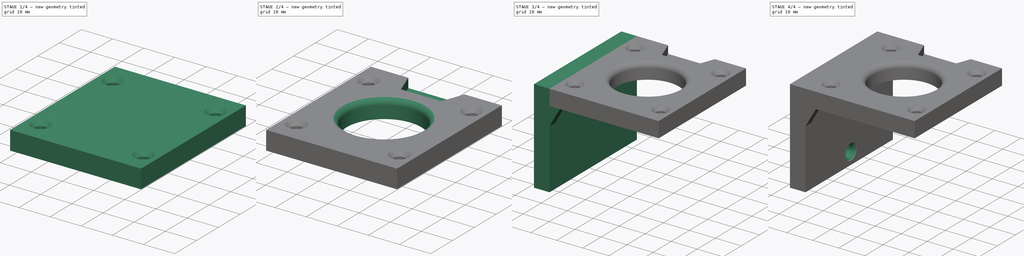
[diagram: build sequence overview — one tinted view per stage of 4, left to right]
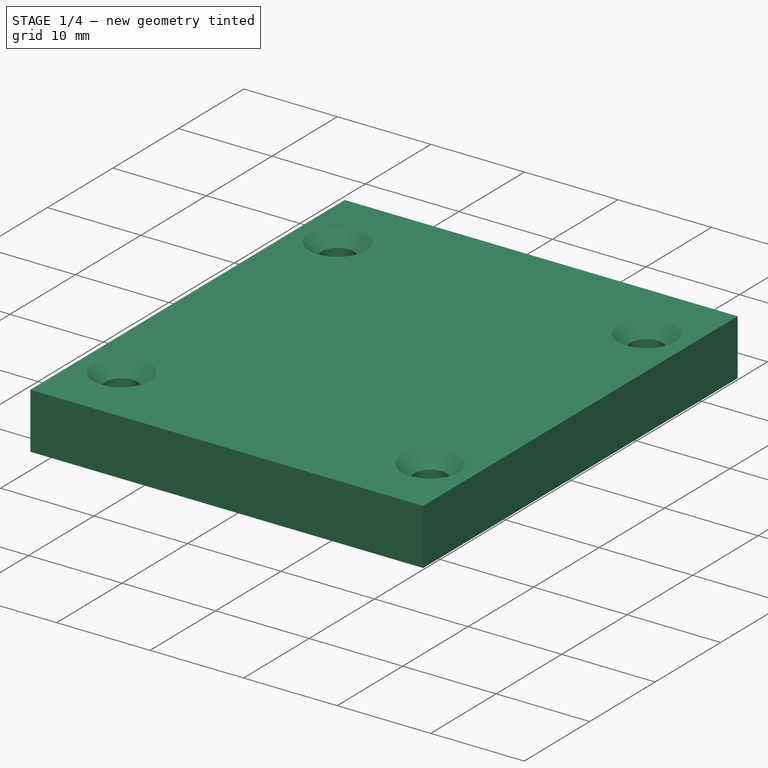
[diagram: stage 1 of 4 — iso view after this stage's code; geometry added in this stage tinted green]
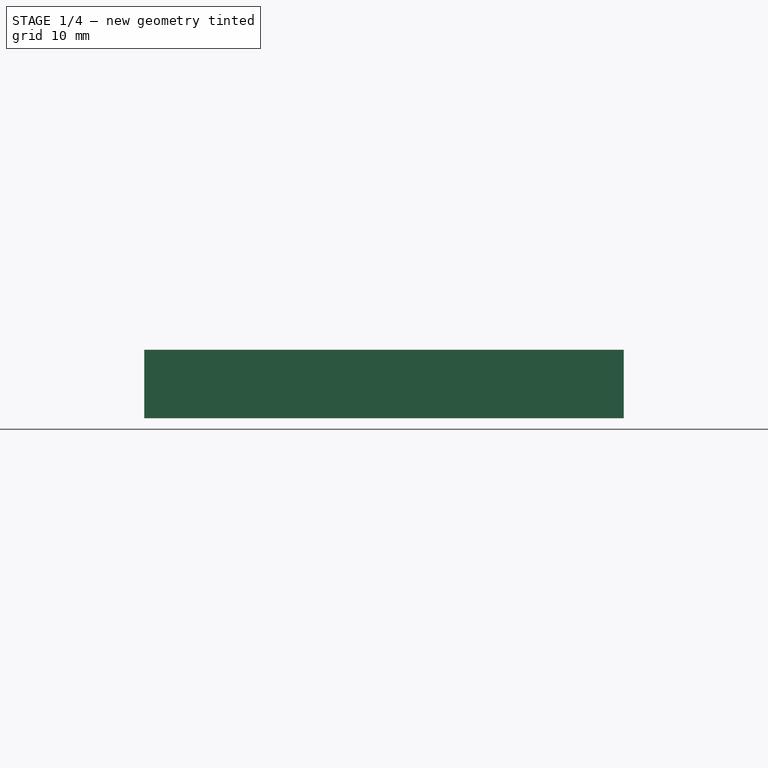
[diagram: stage 1 of 4 — front view after this stage's code; geometry added in this stage tinted green]
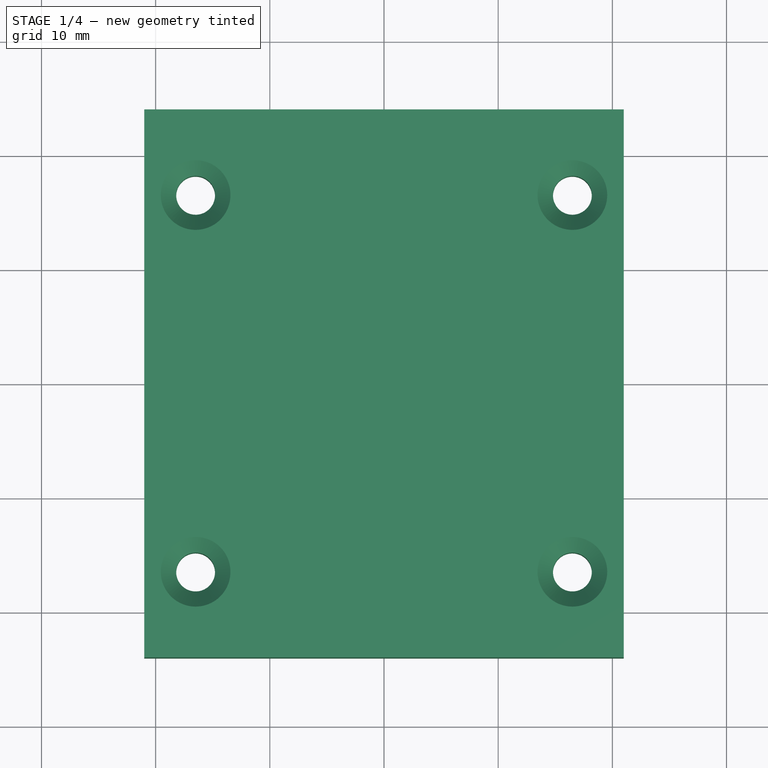
[diagram: stage 1 of 4 — top view after this stage's code; geometry added in this stage tinted green]
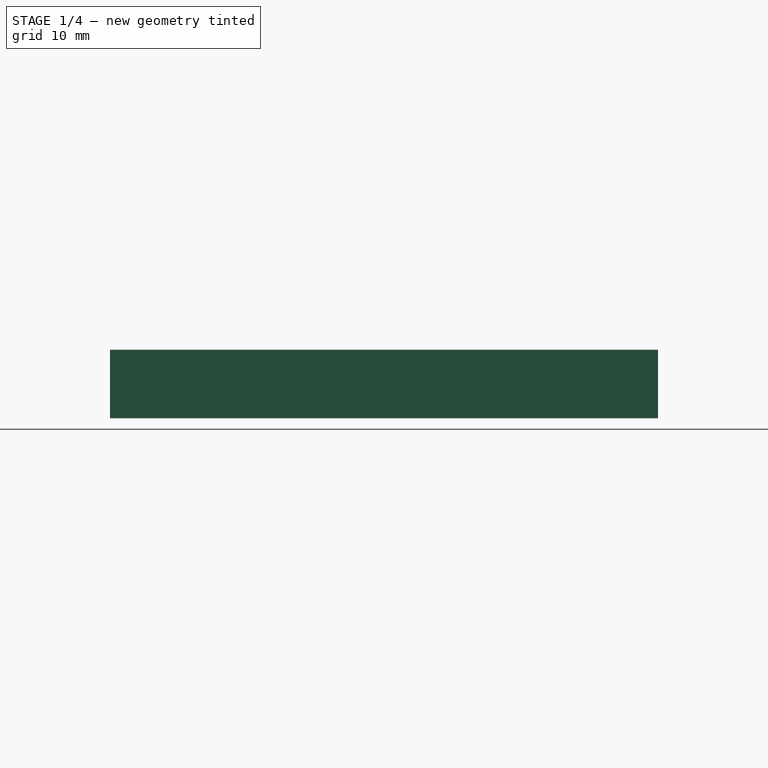
[diagram: stage 1 of 4 — right view after this stage's code; geometry added in this stage tinted green]
FCSTD DOCUMENT  (FreeCAD 0.22R38334 (Git))
Label: MH003
License: All rights reserved
LicenseURL: http://en.wikipedia.org/wiki/All_rights_reserved
objects: Sketcher::SketchObject×8, PartDesign::SubShapeBinder×5, PartDesign::Body×4, PartDesign::Pad×3, PartDesign::Pocket×3, PartDesign::Hole×2, PartDesign::Mirrored×1, PartDesign::Fillet×1, App::Part×1
note: 54 computed .brp shape members not serialized (recipe doc carries the construction recipe); baked Part::Feature solids carry a one-line shape summary decoded from their .brp

FEATURE [PartDesign::SubShapeBinder] Binder012
  BindCopyOnChange = 0
  BindMode = 0
  ClaimChildren = false
  Context = -> Part002 [Body009.Binder012.]
  Fuse = false
  MakeFace = true
  OffsetFill = false
  OffsetIntersection = false
  OffsetJoinType = 0
  OffsetOpenResult = false
  PartialLoad = false
  Relative = true
  Support = -> [Body008[Sketch018.]]
  _Version = 2
FEATURE [PartDesign::SubShapeBinder] Binder013
  BindCopyOnChange = 0
  BindMode = 0
  ClaimChildren = false
  Context = -> Part002 [Body010.Binder013.]
  Fuse = false
  MakeFace = true
  OffsetFill = false
  OffsetIntersection = false
  OffsetJoinType = 0
  OffsetOpenResult = false
  PartialLoad = false
  Relative = true
  Support = -> [Body008[Sketch018.]]
  _Version = 2
FEATURE [PartDesign::SubShapeBinder] Binder014
  BindCopyOnChange = 0
  BindMode = 2
  ClaimChildren = false
  Fuse = false
  MakeFace = true
  OffsetFill = false
  OffsetIntersection = false
  OffsetJoinType = 0
  OffsetOpenResult = false
  PartialLoad = false
  Placement = pos=(-135.5,-191,0) rot=(-0.57735,0.57735,-0.57735;2.0944rad)
  Relative = true
  _Version = 2
FEATURE [PartDesign::SubShapeBinder] Binder022
  BindCopyOnChange = 0
  BindMode = 2
  ClaimChildren = false
  Context = -> Part002 [Body011.Binder022.]
  Fuse = false
  MakeFace = true
  OffsetFill = false
  OffsetIntersection = false
  OffsetJoinType = 0
  OffsetOpenResult = false
  PartialLoad = false
  Placement = pos=(-21.5,191,0) rot=(-0.57735,-0.57735,0.57735;2.0944rad)
  Relative = true
  _Version = 2
FEATURE [PartDesign::SubShapeBinder] Binder024
  BindCopyOnChange = 0
  BindMode = 2
  ClaimChildren = false
  Context = -> Part002 [Body011.Binder024.]
  Fuse = false
  MakeFace = true
  OffsetFill = false
  OffsetIntersection = false
  OffsetJoinType = 0
  OffsetOpenResult = false
  PartialLoad = false
  Placement = pos=(-21.5,191,0) rot=(-0.57735,-0.57735,0.57735;2.0944rad)
  Relative = true
  _Version = 2
FEATURE [PartDesign::Body] Body011
  AllowCompound = false
  Group = -> [Binder014,Binder022]
  Origin = -> Origin014
FEATURE [PartDesign::Pad] Pad006
  Direction = (0,0,1)
  Length = 6
  Length2 = 10
  Profile = -> Binder012
  Suppressed = false
  Type = 0
FEATURE [Sketcher::SketchObject] Sketch018
  AttachmentSupport = -> [XY_Plane011]
  FullyConstrained = true
  MakeInternals = false
  MapMode = 5
  sketch-geometry (5):
    g0: LineSegment StartX=-21 StartY=-24 StartZ=0 EndX=21 EndY=-24 EndZ=0
    g1: LineSegment StartX=21 StartY=-24 StartZ=0 EndX=21 EndY=24 EndZ=0
    g2: LineSegment StartX=21 StartY=24 StartZ=0 EndX=-21 EndY=24 EndZ=0
    g3: LineSegment StartX=-21 StartY=24 StartZ=0 EndX=-21 EndY=-24 EndZ=0
    g4: GeomPoint X=0 Y=0 Z=0
  constraints (12):
    c: Coincident(g0,g1)
    c: Coincident(g1,g2)
    c: Coincident(g2,g3)
    c: Coincident(g3,g0)
    c: Horizontal(g0)
    c: Horizontal(g2)
    c: Vertical(g1)
    c: Vertical(g3)
    c: Symmetric(g2,g0,g4)
    c: Coincident(g4,g-1)
    c: DistanceY(g3,g3) = 48
    c: DistanceX(g2,g2) = 42
FEATURE [PartDesign::Body] Body008  label="Master002"
  AllowCompound = false
  Group = -> [Sketch018]
  Origin = -> Origin011
FEATURE [Sketcher::SketchObject] Sketch019
  AttachmentSupport = -> [Pad006]
  FullyConstrained = true
  MakeInternals = false
  MapMode = 5
  Placement = pos=(0,0,6) rot=(0,0,1;0rad)
  sketch-geometry (9):
    g0: LineSegment StartX=-16.5 StartY=-16.5 StartZ=0 EndX=16.5 EndY=-16.5 EndZ=0
    g1: LineSegment StartX=16.5 StartY=-16.5 StartZ=0 EndX=16.5 EndY=16.5 EndZ=0
    g2: LineSegment StartX=16.5 StartY=16.5 StartZ=0 EndX=-16.5 EndY=16.5 EndZ=0
    g3: LineSegment StartX=-16.5 StartY=16.5 StartZ=0 EndX=-16.5 EndY=-16.5 EndZ=0
    g4: GeomPoint X=0 Y=0 Z=0
    g5: Circle CenterX=-16.5 CenterY=16.5 CenterZ=0 NormalX=0 NormalY=0 NormalZ=1 AngleXU=0 Radius=1.5
    g6: Circle CenterX=-16.5 CenterY=-16.5 CenterZ=0 NormalX=0 NormalY=0 NormalZ=1 AngleXU=0 Radius=1.5
    g7: Circle CenterX=16.5 CenterY=-16.5 CenterZ=0 NormalX=0 NormalY=0 NormalZ=1 AngleXU=0 Radius=1.5
    g8: Circle CenterX=16.5 CenterY=16.5 CenterZ=0 NormalX=0 NormalY=0 NormalZ=1 AngleXU=0 Radius=1.5
  constraints (20):
    c: Coincident(g0,g1)
    c: Coincident(g1,g2)
    c: Coincident(g2,g3)
    c: Coincident(g3,g0)
    c: Horizontal(g0)
    c: Horizontal(g2)
    c: Vertical(g1)
    c: Vertical(g3)
    c: Symmetric(g2,g0,g4)
    c: Coincident(g4,g-1)
    c: Equal(g2,g3)
    c: DistanceX(g2,g2) = 33
    c: Coincident(g5,g2)
    c: Coincident(g6,g0)
    c: Coincident(g7,g0)
    c: Coincident(g8,g1)
    c: Equal(g5,g8)
    c: Equal(g8,g7)
    c: Equal(g7,g6)
    c: Diameter(g5) = 3
FEATURE [PartDesign::Hole] Hole005
  BaseFeature = -> Pad006
  CustomThreadClearance = 0
  Depth = 120.592
  DepthType = 1
  Diameter = 3.4
  DrillForDepth = false
  DrillPoint = 1
  DrillPointAngle = 118
  HoleCutCountersinkAngle = 90
  HoleCutCustomValues = false
  HoleCutDepth = 0
  HoleCutDiameter = 6.1
  HoleCutType = 2
  ModelThread = false
  Profile = -> Sketch019
  Suppressed = false
  Tapered = false
  TaperedAngle = 90
  ThreadClass = 0
  ThreadDepth = 120.592
  ThreadDepthType = 0
  ThreadDirection = 0
  ThreadFit = 0
  ThreadSize = 9
  ThreadType = 1
  Threaded = false
  UseCustomThreadClearance = false
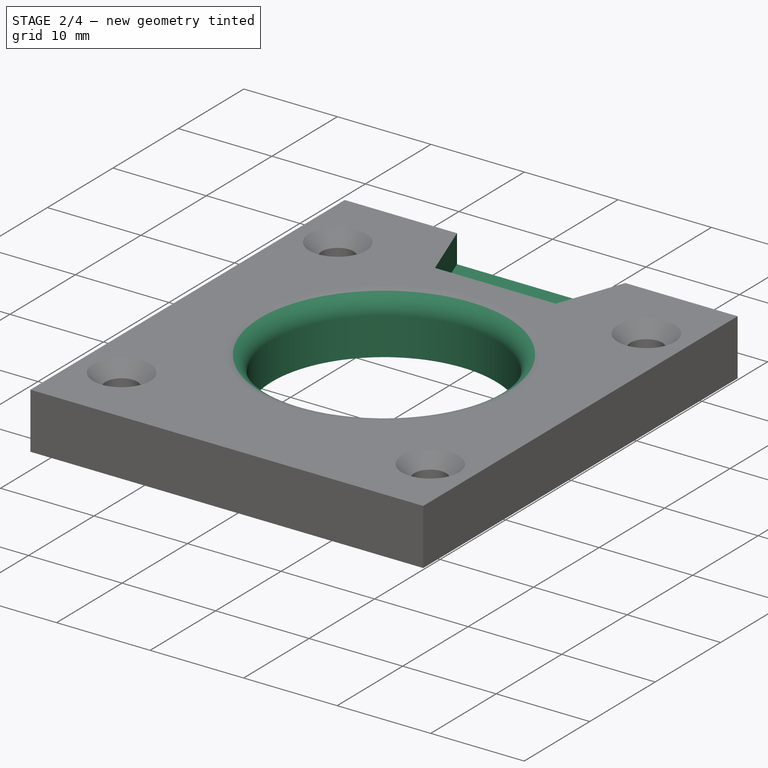
[diagram: stage 2 of 4 — iso view after this stage's code; geometry added in this stage tinted green]
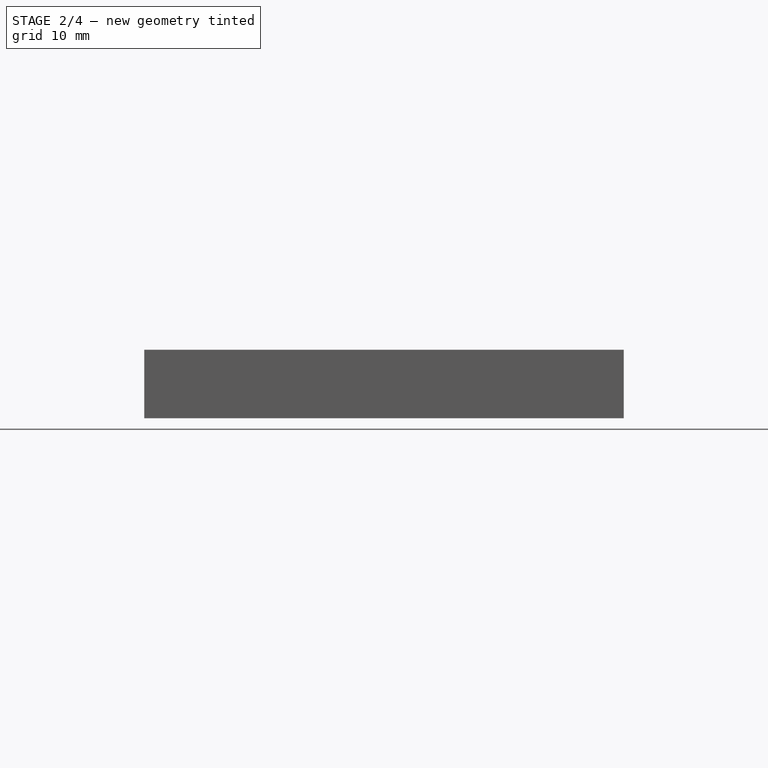
[diagram: stage 2 of 4 — front view after this stage's code; geometry added in this stage tinted green]
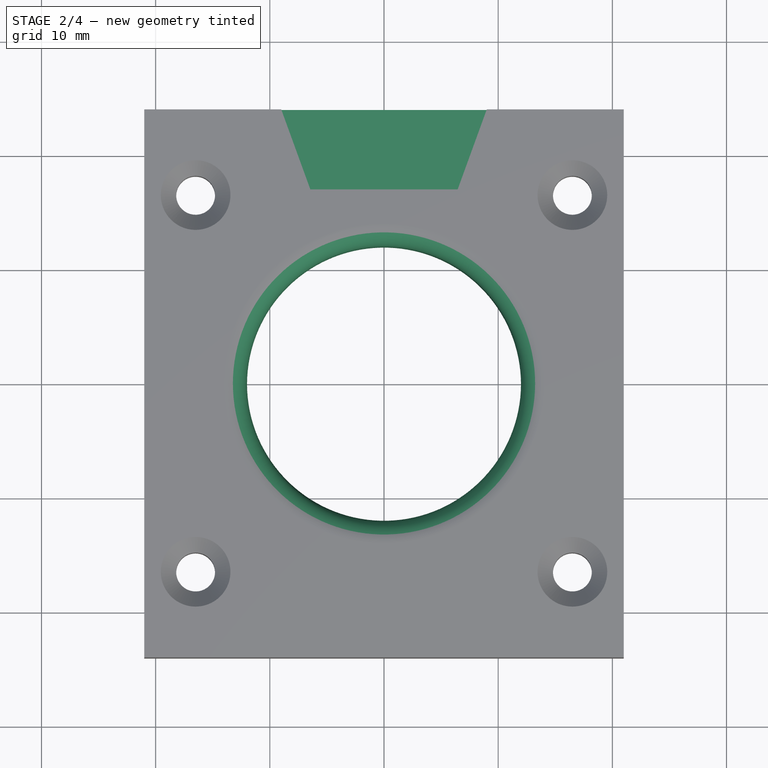
[diagram: stage 2 of 4 — top view after this stage's code; geometry added in this stage tinted green]
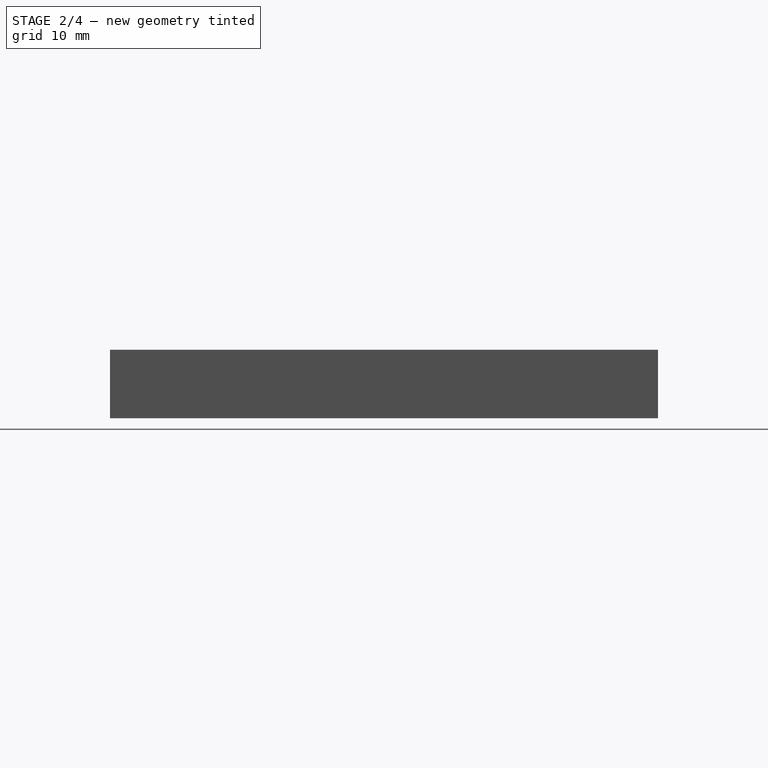
[diagram: stage 2 of 4 — right view after this stage's code; geometry added in this stage tinted green]
FEATURE [Sketcher::SketchObject] Sketch022
  AttachmentSupport = -> [Hole005]
  ExternalGeometry = -> [Sketch019]
  FullyConstrained = true
  MakeInternals = false
  MapMode = 5
  Placement = pos=(0,0,6) rot=(0,0,1;0rad)
  sketch-geometry (1):
    g0: Circle CenterX=-2e-16 CenterY=2e-16 CenterZ=0 NormalX=0 NormalY=0 NormalZ=1 AngleXU=0 Radius=12
  constraints (2):
    c: Symmetric(g-3,g-4,g0)
    c: Diameter(g0) = 24
FEATURE [PartDesign::Pocket] Pocket005
  BaseFeature = -> Hole005
  Direction = (0,0,-1)
  Length = 5
  Length2 = 5
  Profile = -> Sketch022
  ReferenceAxis = -> Sketch022 [N_Axis]
  Suppressed = false
  Type = 1
FEATURE [PartDesign::Fillet] Fillet002
  Base = -> Pocket005 [Edge21]
  BaseFeature = -> Pocket005
  Radius = 2
  SupportTransform = false
  Suppressed = false
  UseAllEdges = false
FEATURE [Sketcher::SketchObject] Sketch023
  AttachmentSupport = -> [Fillet002]
  ExternalGeometry = -> [Fillet002]
  FullyConstrained = true
  MakeInternals = false
  MapMode = 5
  Placement = pos=(0,0,6) rot=(0,0,1;0rad)
  sketch-geometry (4):
    g0: LineSegment StartX=-9 StartY=24 StartZ=0 EndX=9 EndY=24 EndZ=0
    g1: LineSegment StartX=9 StartY=24 StartZ=0 EndX=6.45221 EndY=17 EndZ=0
    g2: LineSegment StartX=6.45221 StartY=17 StartZ=0 EndX=-6.45221 EndY=17 EndZ=0
    g3: LineSegment StartX=-6.45221 StartY=17 StartZ=0 EndX=-9 EndY=24 EndZ=0
  constraints (10):
    c: PointOnObject(g0,g-3)
    c: Coincident(g0,g1)
    c: Coincident(g1,g2)
    c: Coincident(g2,g3)
    c: Coincident(g3,g0)
    c: Symmetric(g1,g2,g-2)
    c: Symmetric(g0,g0,g-2)
    c: Distance(g2,g0) = 7
    c: Angle(g2,g3) = 1.91986
    c: DistanceX(g0,g0) = 18
FEATURE [PartDesign::Pocket] Pocket010
  BaseFeature = -> Fillet002
  Direction = (0,0,-1)
  Length = 3
  Length2 = 5
  Profile = -> Sketch023
  ReferenceAxis = -> Sketch023 [N_Axis]
  Suppressed = false
  Type = 0
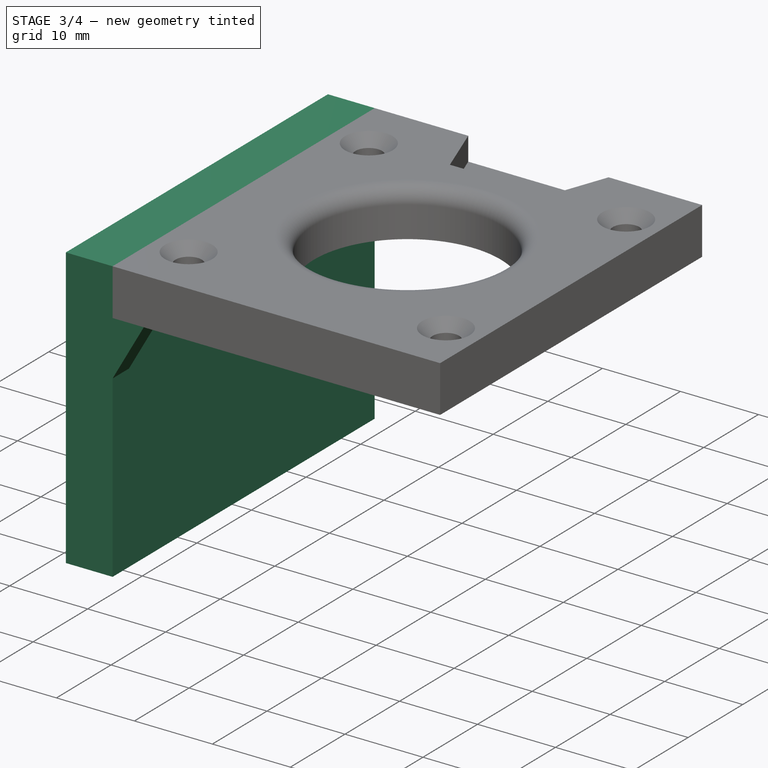
[diagram: stage 3 of 4 — iso view after this stage's code; geometry added in this stage tinted green]
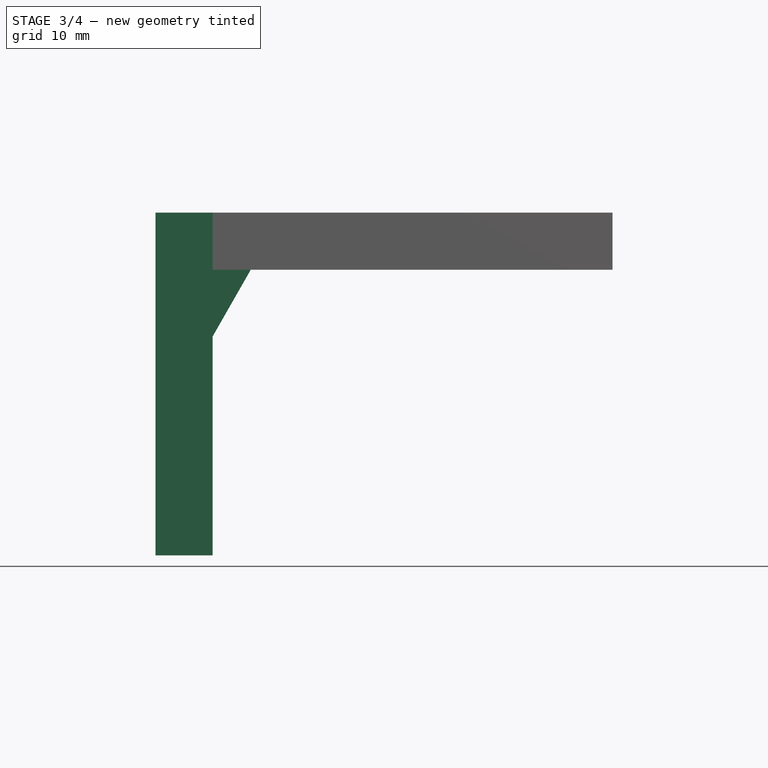
[diagram: stage 3 of 4 — front view after this stage's code; geometry added in this stage tinted green]
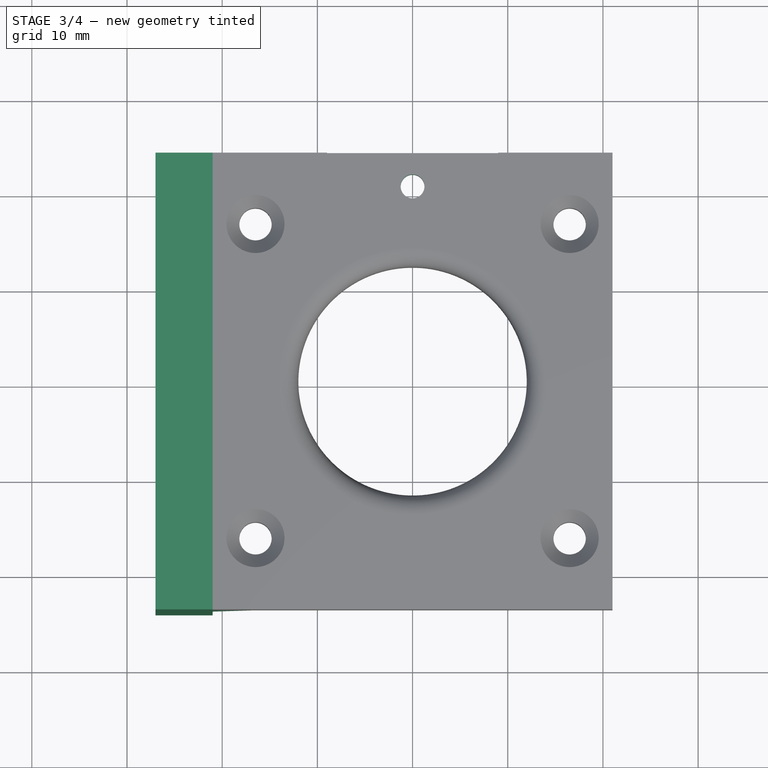
[diagram: stage 3 of 4 — top view after this stage's code; geometry added in this stage tinted green]
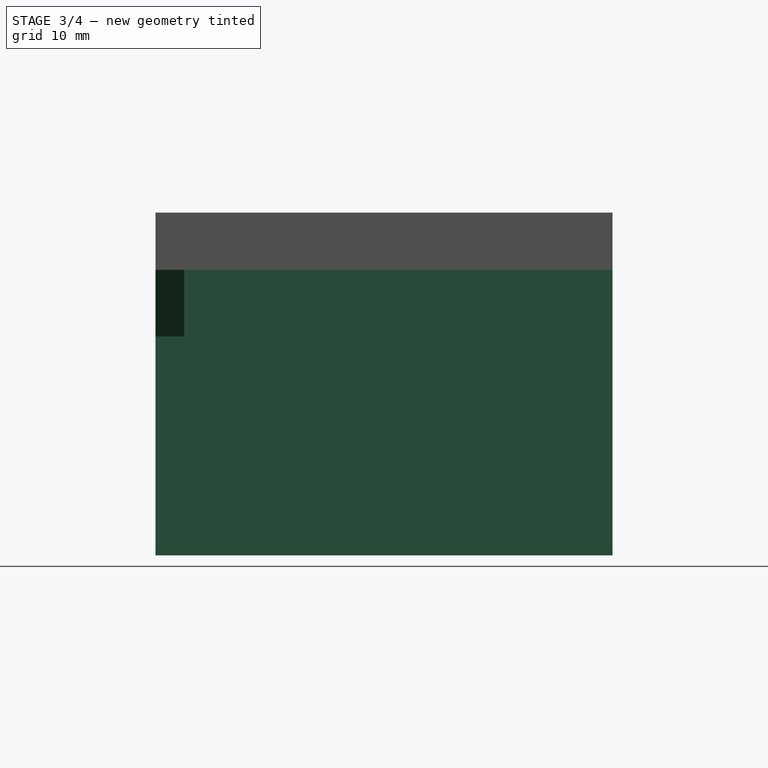
[diagram: stage 3 of 4 — right view after this stage's code; geometry added in this stage tinted green]
FEATURE [Sketcher::SketchObject] Sketch020
  AttachmentSupport = -> [Binder013]
  ExternalGeometry = -> [Binder013]
  FullyConstrained = true
  MakeInternals = false
  MapMode = 5
  sketch-geometry (4):
    g0: LineSegment StartX=-21 StartY=24 StartZ=0 EndX=-27 EndY=24 EndZ=0
    g1: LineSegment StartX=-27 StartY=24 StartZ=0 EndX=-27 EndY=-24 EndZ=0
    g2: LineSegment StartX=-27 StartY=-24 StartZ=0 EndX=-21 EndY=-24 EndZ=0
    g3: LineSegment StartX=-21 StartY=-24 StartZ=0 EndX=-21 EndY=24 EndZ=0
  constraints (10):
    c: Coincident(g0,g1)
    c: Coincident(g1,g2)
    c: Coincident(g2,g3)
    c: Coincident(g3,g0)
    c: Horizontal(g0)
    c: Horizontal(g2)
    c: Vertical(g1)
    c: Coincident(g0,g-3)
    c: Coincident(g2,g-3)
    c: DistanceX(g2,g2) = 6
FEATURE [PartDesign::Pad] Pad007
  Direction = (0,0,1)
  Length = 6
  Length2 = 30
  Profile = -> Sketch020
  ReferenceAxis = -> Sketch020 [N_Axis]
  Suppressed = false
  Type = 4
FEATURE [Sketcher::SketchObject] Sketch021
  AttachmentSupport = -> [Pad007]
  ExternalGeometry = -> [Binder013,Pad007]
  FullyConstrained = true
  MakeInternals = false
  MapMode = 5
  Placement = pos=(0,-24,0) rot=(1,0,0;1.5708rad)
  sketch-geometry (3):
    g0: LineSegment StartX=-21 StartY=0 StartZ=0 EndX=-21 EndY=-7 EndZ=0
    g1: LineSegment StartX=-21 StartY=-7 StartZ=0 EndX=-17 EndY=0 EndZ=0
    g2: LineSegment StartX=-17 StartY=0 StartZ=0 EndX=-21 EndY=0 EndZ=0
  constraints (9):
    c: Coincident(g0,g1)
    c: Coincident(g1,g2)
    c: DistanceX(g2,g2) = 4
    c: DistanceY(g0,g0) = 7
    c: PointOnObject(g0,g-4)
    c: Coincident(g2,g0)
    c: PointOnObject(g0,g-4)
    c: Horizontal(g2)
    c: PointOnObject(g1,g-1)
FEATURE [PartDesign::Pad] Pad008
  BaseFeature = -> Pad007
  Direction = (0,-1,2e-16)
  Length = 3
  Length2 = 10
  Profile = -> Sketch021
  ReferenceAxis = -> Sketch021 [N_Axis]
  Reversed = true
  Suppressed = false
  Type = 0
FEATURE [PartDesign::Body] Body010
  AllowCompound = false
  Group = -> [Binder013,Sketch020,Pad007,Sketch021,Pad008,Mirrored002,Binder024,Sketch036,Hole010]
  Origin = -> Origin013
  Tip = -> Hole010
FEATURE [Sketcher::SketchObject] Sketch037
  AttachmentSupport = -> [Pocket010]
  ExternalGeometry = -> [Pocket010]
  FullyConstrained = true
  MakeInternals = false
  MapMode = 5
  Placement = pos=(0,0,3) rot=(0,0,1;0rad)
  sketch-geometry (2):
    g0: LineSegment StartX=0 StartY=24 StartZ=0 EndX=0 EndY=17 EndZ=0
    g1: Circle CenterX=0 CenterY=20.5 CenterZ=0 NormalX=0 NormalY=0 NormalZ=1 AngleXU=0 Radius=1.25
  constraints (4):
    c: Symmetric(g-3,g-3,g0)
    c: Symmetric(g-4,g-4,g0)
    c: Symmetric(g0,g0,g1)
    c: Diameter(g1) = 2.5
FEATURE [PartDesign::Pocket] Pocket011
  BaseFeature = -> Pocket010
  Direction = (0,0,-1)
  Length = 5
  Length2 = 5
  Profile = -> Sketch037
  ReferenceAxis = -> Sketch037 [N_Axis]
  Suppressed = false
  Type = 1
FEATURE [PartDesign::Body] Body009
  AllowCompound = false
  Group = -> [Binder012,Pad006,Sketch019,Hole005,Sketch022,Pocket005,Fillet002,Sketch023,Pocket010,Sketch037,Pocket011]
  Origin = -> Origin012
  Tip = -> Pocket011
FEATURE [App::Part] Part002  label="MH003"
  Group = -> [Body008,Body009,Body010,Body011]
  Origin = -> Origin010
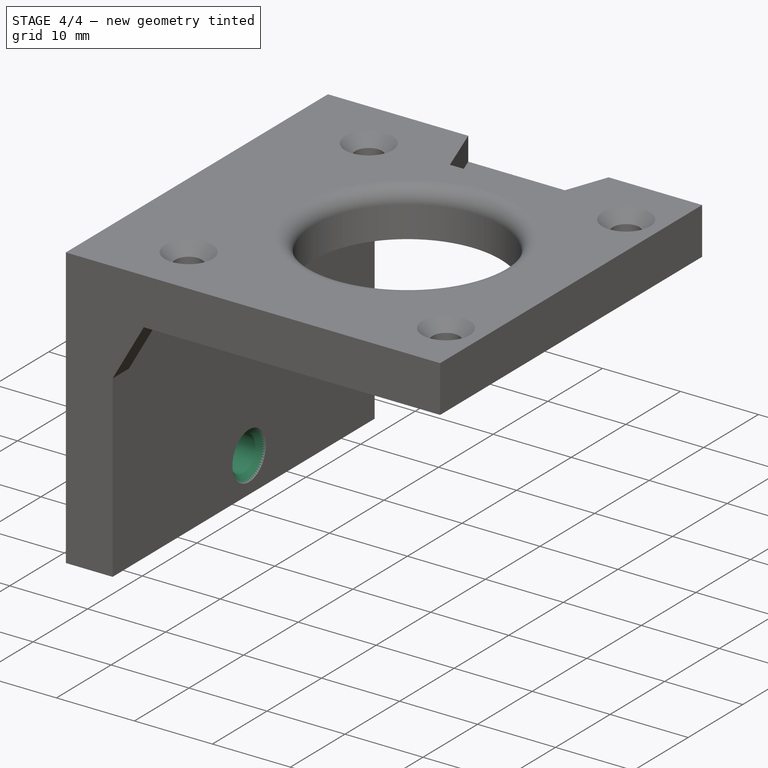
[diagram: stage 4 of 4 — iso view after this stage's code; geometry added in this stage tinted green]
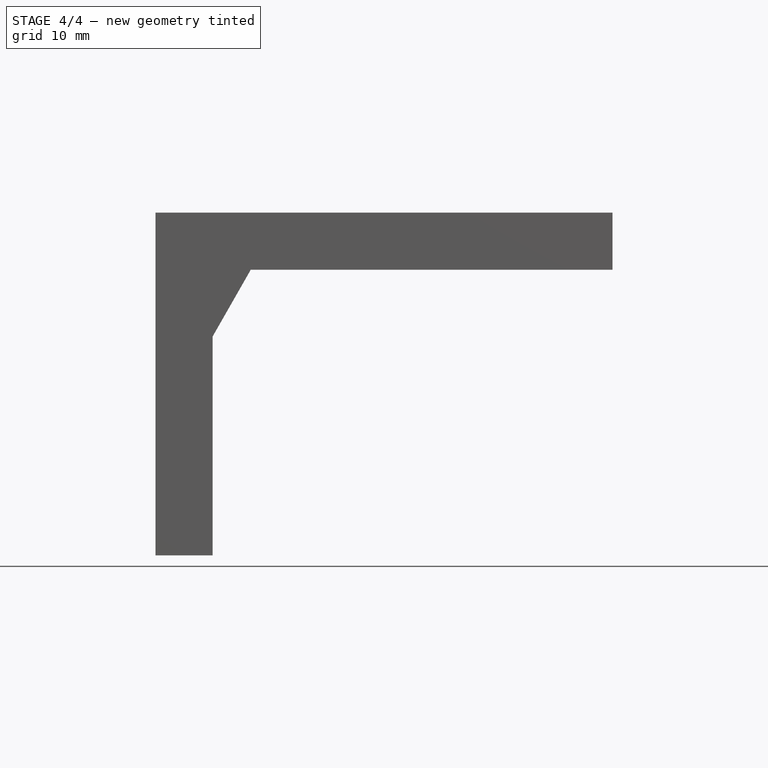
[diagram: stage 4 of 4 — front view after this stage's code; geometry added in this stage tinted green]
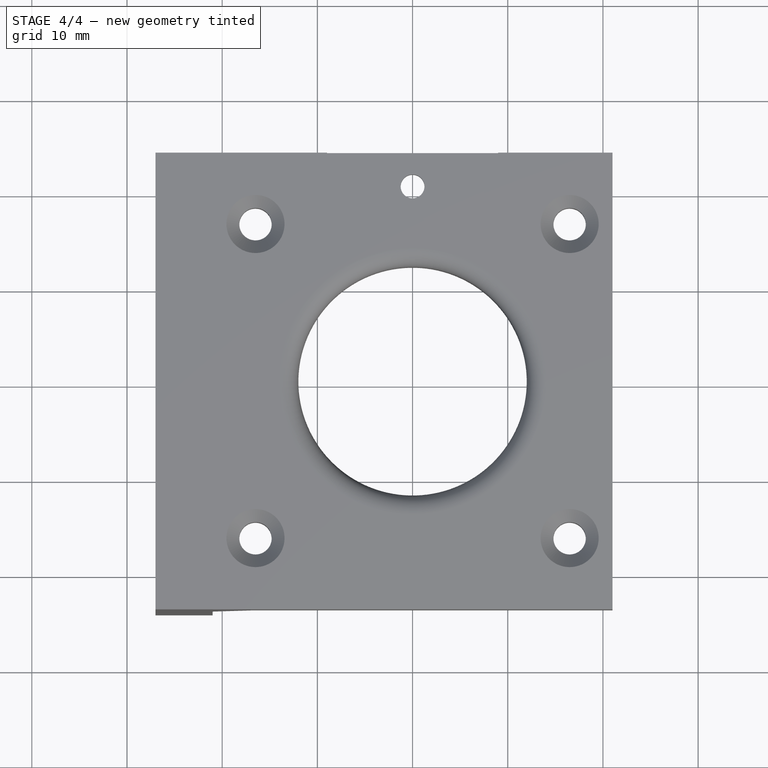
[diagram: stage 4 of 4 — top view after this stage's code; geometry added in this stage tinted green]
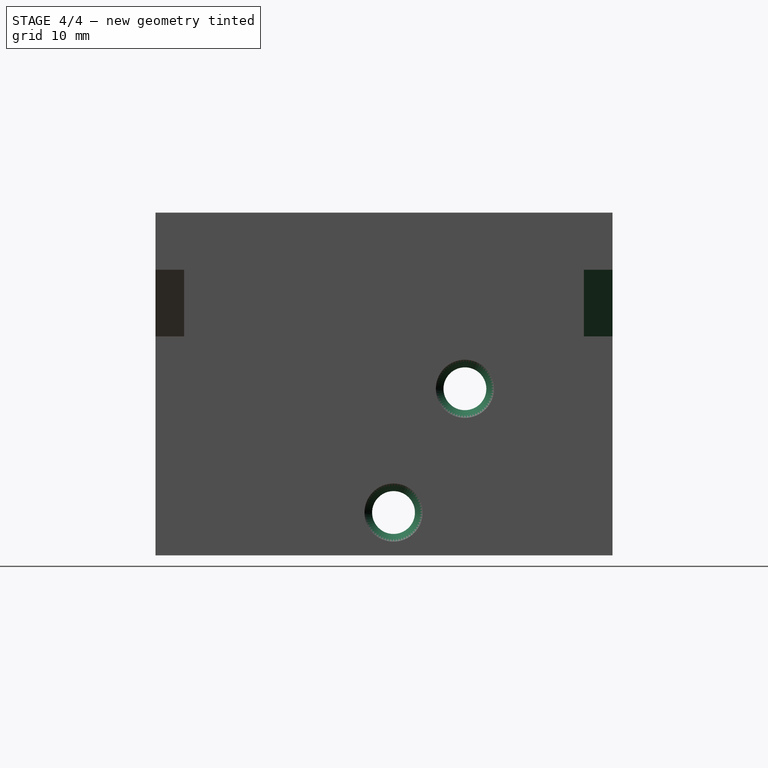
[diagram: stage 4 of 4 — right view after this stage's code; geometry added in this stage tinted green]
FEATURE [PartDesign::Mirrored] Mirrored002
  BaseFeature = -> Pad008
  MirrorPlane = -> XZ_Plane013
  Originals = -> [Pad008]
  Suppressed = false
  TransformMode = 0
FEATURE [Sketcher::SketchObject] Sketch036
  AttachmentSupport = -> [Binder024]
  ExternalGeometry = -> [Binder024]
  FullyConstrained = true
  MakeInternals = false
  MapMode = 5
  Placement = pos=(-21,191,0) rot=(0.57735,0.57735,0.57735;2.0944rad)
  sketch-geometry (2):
    g0: Circle CenterX=-190 CenterY=-25.5018 CenterZ=0 NormalX=0 NormalY=0 NormalZ=1 AngleXU=0 Radius=1.65
    g1: Circle CenterX=-182.5 CenterY=-12.5 CenterZ=0 NormalX=0 NormalY=0 NormalZ=1 AngleXU=0 Radius=1.65
  constraints (4):
    c: Coincident(g0,g-4)
    c: PointOnObject(g-4,g0)
    c: Coincident(g1,g-5)
    c: PointOnObject(g-5,g1)
FEATURE [PartDesign::Hole] Hole010
  BaseFeature = -> Mirrored002
  CustomThreadClearance = 0
  Depth = 25
  DepthType = 0
  Diameter = 4.5
  DrillForDepth = false
  DrillPoint = 1
  DrillPointAngle = 118
  HoleCutCountersinkAngle = 90
  HoleCutCustomValues = false
  HoleCutDepth = 0
  HoleCutDiameter = 6.1
  HoleCutType = 2
  ModelThread = false
  Profile = -> Sketch036
  Suppressed = false
  Tapered = false
  TaperedAngle = 90
  ThreadClass = 0
  ThreadDepth = 25
  ThreadDepthType = 0
  ThreadDirection = 0
  ThreadFit = 0
  ThreadSize = 11
  ThreadType = 1
  Threaded = false
  UseCustomThreadClearance = false
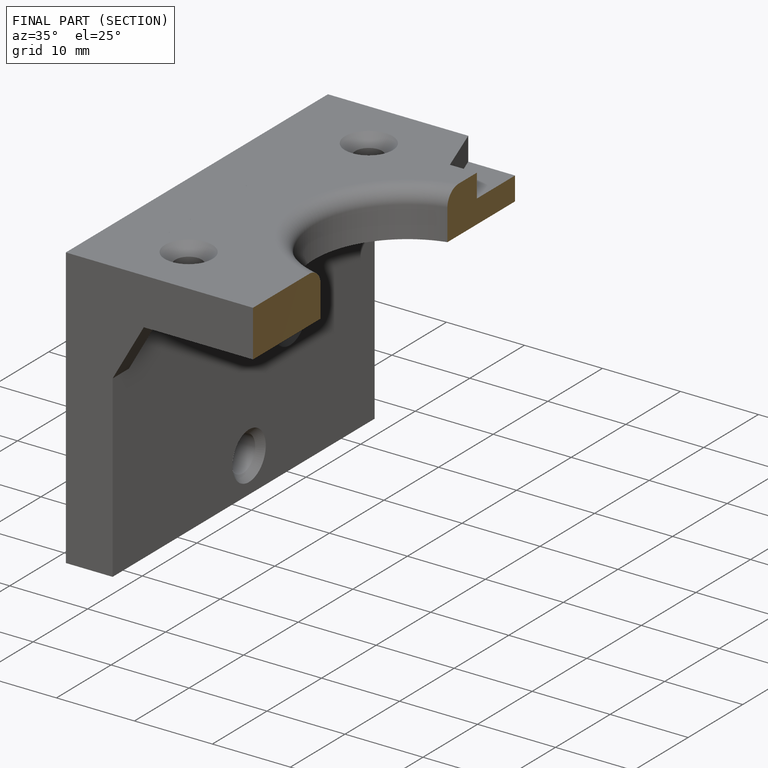
[diagram: finished part — half-section view (interior)]
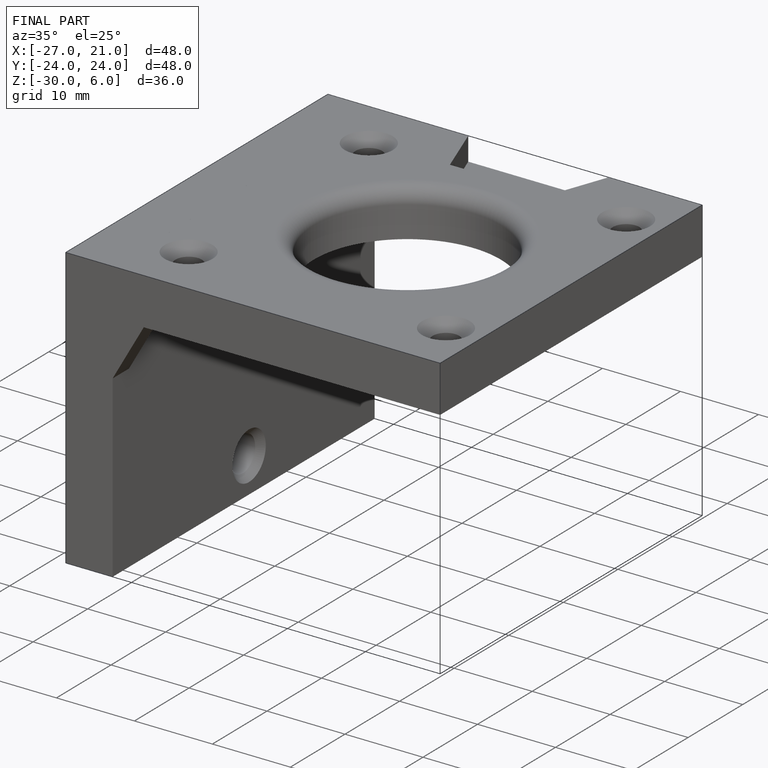
[diagram: finished part — iso view with bounding-box wireframe]
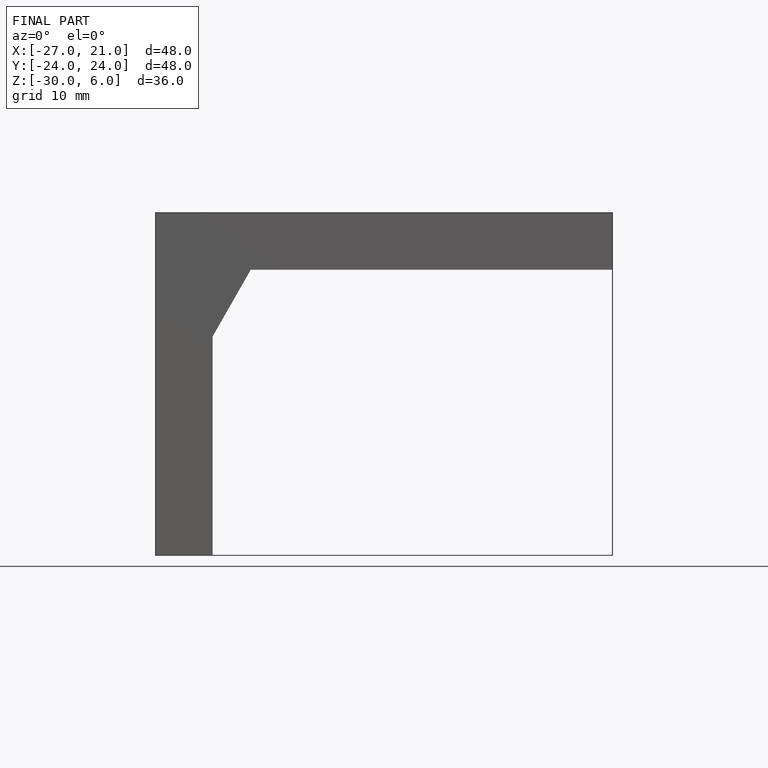
[diagram: finished part — front view with bounding-box wireframe]
